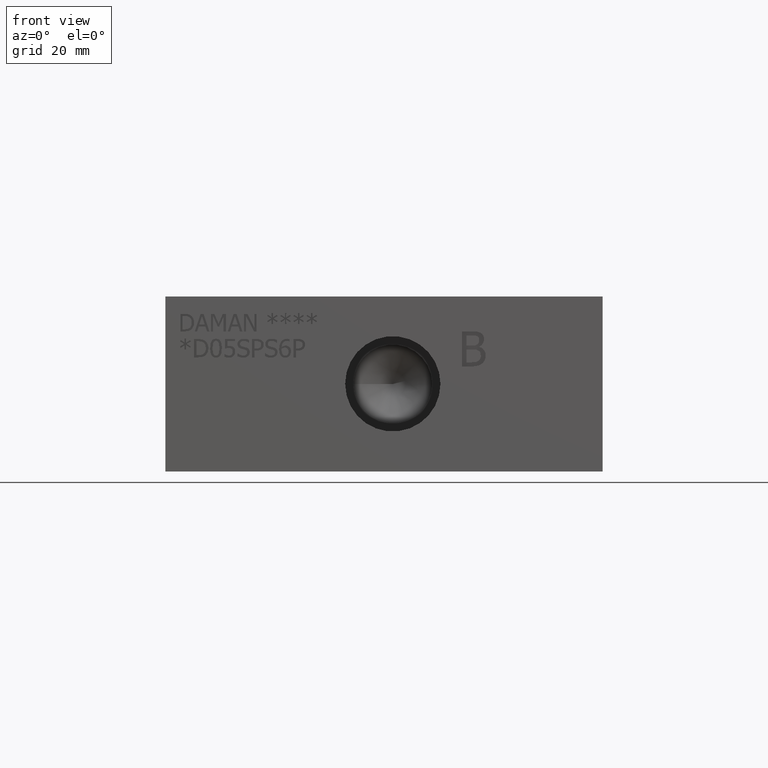
[diagram: clean part render]
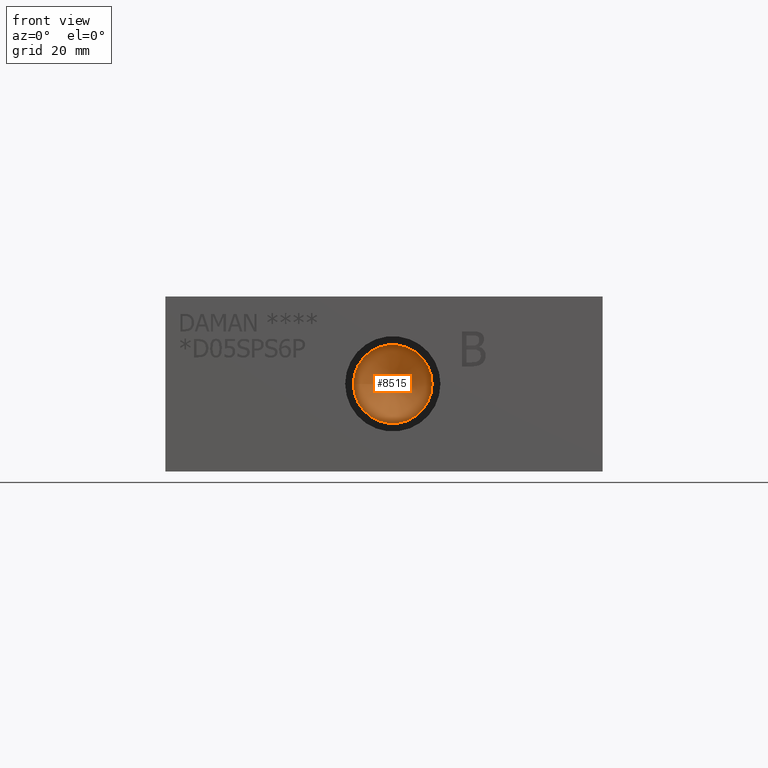
[diagram: same view with one face highlighted and labeled with its STEP entity id]
A machine part, front view. The second image highlights one B-rep face of the part: STEP entity #8515.
In plain terms, the highlighted conical surface has half-angle 60 deg.
Its self-contained STEP definition (entity closure, byte-faithful):
#41=CONICAL_SURFACE('',#8855,3.57505,1.0471975511966);
#73=CIRCLE('',#8856,7.1501);
#74=CIRCLE('',#8857,7.1501);
#854=FACE_OUTER_BOUND('',#1326,.T.);
#1326=EDGE_LOOP('',(#7405,#7406,#7407,#7408));
#2187=LINE('',#14461,#3016);
#3016=VECTOR('',#10334,3.57505);
#4033=VERTEX_POINT('',#14457);
#4034=VERTEX_POINT('',#14458);
#4035=VERTEX_POINT('',#14460);
#5186=EDGE_CURVE('',#4033,#4034,#73,.T.);
#5187=EDGE_CURVE('',#4034,#4035,#2187,.T.);
#5188=EDGE_CURVE('',#4034,#4033,#74,.T.);
#7405=ORIENTED_EDGE('',*,*,#5186,.T.);
#7406=ORIENTED_EDGE('',*,*,#5187,.T.);
#7407=ORIENTED_EDGE('',*,*,#5187,.F.);
#7408=ORIENTED_EDGE('',*,*,#5188,.T.);
#8515=ADVANCED_FACE('',(#854),#41,.F.);
#8855=AXIS2_PLACEMENT_3D('',#14456,#10330,#10331);
#8856=AXIS2_PLACEMENT_3D('',#14459,#10332,#10333);
#8857=AXIS2_PLACEMENT_3D('',#14462,#10335,#10336);
#10330=DIRECTION('center_axis',(0.,-1.,0.));
#10331=DIRECTION('ref_axis',(1.,0.,0.));
#10332=DIRECTION('center_axis',(0.,-1.,0.));
#10333=DIRECTION('ref_axis',(1.,0.,0.));
#10334=DIRECTION('',(0.866025403784439,0.5,1.06057523872491E-16));
#10335=DIRECTION('center_axis',(0.,-1.,0.));
#10336=DIRECTION('ref_axis',(1.,0.,0.));
#14456=CARTESIAN_POINT('Origin',(41.275,14.2116660798664,15.875));
#14457=CARTESIAN_POINT('',(48.4251,12.14761,15.875));
#14458=CARTESIAN_POINT('',(34.1249,12.14761,15.875));
#14459=CARTESIAN_POINT('Origin',(41.275,12.14761,15.875));
#14460=CARTESIAN_POINT('',(41.275,16.2757221597327,15.875));
#14461=CARTESIAN_POINT('',(37.69995,14.2116660798664,15.875));
#14462=CARTESIAN_POINT('Origin',(41.275,12.14761,15.875));